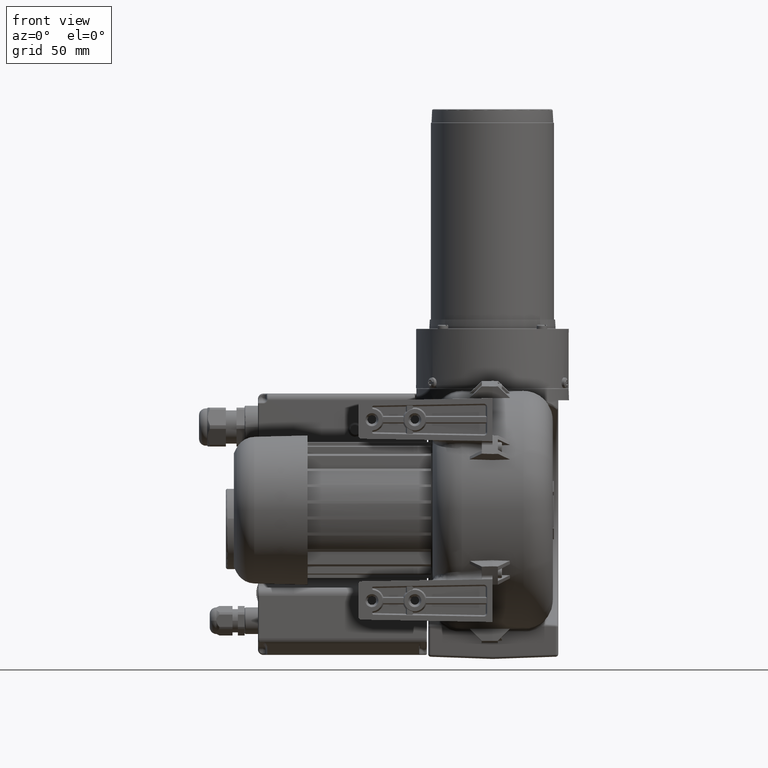
[diagram: clean part render]
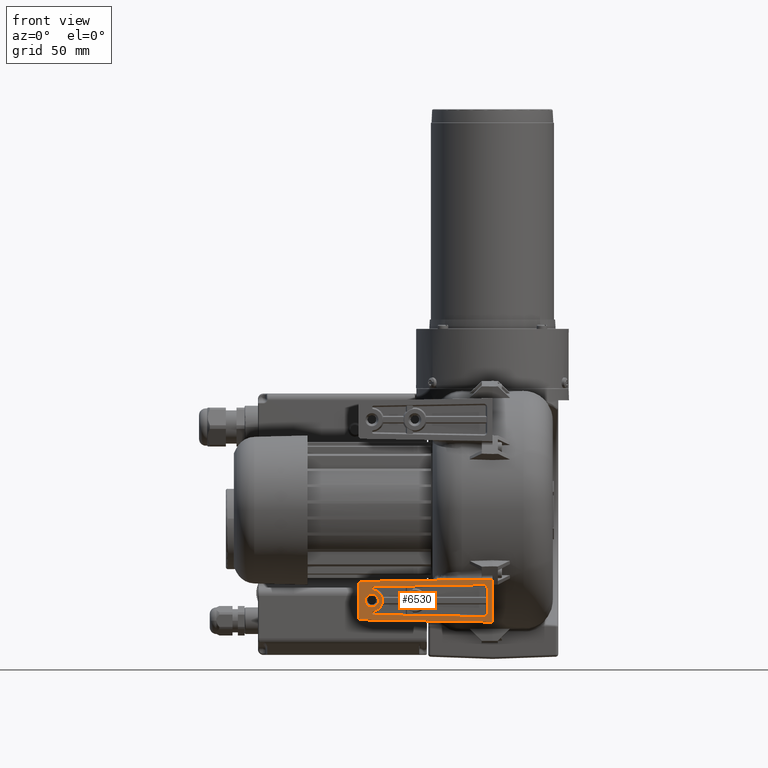
[diagram: same view with one face highlighted and labeled with its STEP entity id]
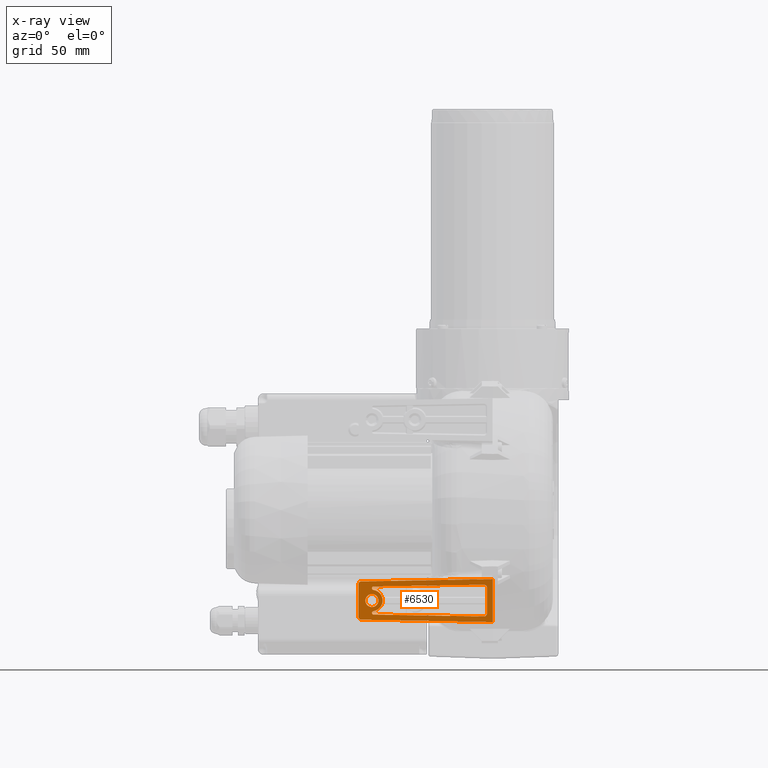
[diagram: x-ray of the same camera — body ghosted, the highlighted face saturated]
A machine part, front view. The second image highlights one B-rep face of the part: STEP entity #6530.
The next image is the same camera in x-ray: the body ghosted, the highlighted face saturated — about 0% of this face is hidden behind the body in this view.
In plain terms, the highlighted planar face has unit normal (0, -1, 0).
Its self-contained STEP definition (entity closure, byte-faithful):
#6530 = ADVANCED_FACE( '', ( #13610, #13611, #13612 ), #13613, .T. );
#13610 = FACE_OUTER_BOUND( '', #25799, .T. );
#13611 = FACE_BOUND( '', #25800, .T. );
#13612 = FACE_BOUND( '', #25801, .T. );
#13613 = PLANE( '', #25802 );
#25799 = EDGE_LOOP( '', ( #47168, #47169, #47170, #47171, #47172, #47173 ) );
#25800 = EDGE_LOOP( '', ( #47174 ) );
#25801 = EDGE_LOOP( '', ( #47175, #47176, #47177, #47178, #47179, #47180, #47181, #47182 ) );
#25802 = AXIS2_PLACEMENT_3D( '', #47183, #47184, #47185 );
#47168 = ORIENTED_EDGE( '', *, *, #54760, .F. );
#47169 = ORIENTED_EDGE( '', *, *, #51633, .F. );
#47170 = ORIENTED_EDGE( '', *, *, #52411, .F. );
#47171 = ORIENTED_EDGE( '', *, *, #50057, .T. );
#47172 = ORIENTED_EDGE( '', *, *, #51736, .T. );
#47173 = ORIENTED_EDGE( '', *, *, #55724, .F. );
#47174 = ORIENTED_EDGE( '', *, *, #55462, .F. );
#47175 = ORIENTED_EDGE( '', *, *, #57520, .F. );
#47176 = ORIENTED_EDGE( '', *, *, #54920, .F. );
#47177 = ORIENTED_EDGE( '', *, *, #57521, .F. );
#47178 = ORIENTED_EDGE( '', *, *, #53325, .F. );
#47179 = ORIENTED_EDGE( '', *, *, #54583, .T. );
#47180 = ORIENTED_EDGE( '', *, *, #52381, .F. );
#47181 = ORIENTED_EDGE( '', *, *, #55127, .F. );
#47182 = ORIENTED_EDGE( '', *, *, #57444, .F. );
#47183 = CARTESIAN_POINT( '', ( 0.000000000000000, -91.9999999999876, -51.4999999999972 ) );
#47184 = DIRECTION( '', ( 0.000000000000000, -1.00000000000000, 0.000000000000000 ) );
#47185 = DIRECTION( '', ( 0.000000000000000, 0.000000000000000, -1.00000000000000 ) );
#50057 = EDGE_CURVE( '', #59564, #59565, #59566, .T. );
#51633 = EDGE_CURVE( '', #62280, #62271, #62282, .T. );
#51736 = EDGE_CURVE( '', #59565, #62448, #62450, .T. );
#52381 = EDGE_CURVE( '', #63503, #63505, #63506, .T. );
#52411 = EDGE_CURVE( '', #59564, #62280, #63553, .T. );
#53325 = EDGE_CURVE( '', #64979, #64981, #64982, .T. );
#54583 = EDGE_CURVE( '', #64979, #63505, #66800, .T. );
#54760 = EDGE_CURVE( '', #62271, #67058, #67062, .T. );
#54920 = EDGE_CURVE( '', #67288, #67290, #67291, .T. );
#55127 = EDGE_CURVE( '', #67571, #63503, #67573, .T. );
#55462 = EDGE_CURVE( '', #68001, #68001, #68002, .T. );
#55724 = EDGE_CURVE( '', #67058, #62448, #68352, .T. );
#57444 = EDGE_CURVE( '', #70368, #67571, #70370, .T. );
#57520 = EDGE_CURVE( '', #67290, #70368, #70448, .T. );
#57521 = EDGE_CURVE( '', #64981, #67288, #70449, .T. );
#59564 = VERTEX_POINT( '', #73950 );
#59565 = VERTEX_POINT( '', #73951 );
#59566 = LINE( '', #73952, #73953 );
#62271 = VERTEX_POINT( '', #79173 );
#62280 = VERTEX_POINT( '', #79187 );
#62282 = LINE( '', #79190, #79191 );
#62448 = VERTEX_POINT( '', #79453 );
#62450 = LINE( '', #79456, #79457 );
#63503 = VERTEX_POINT( '', #81550 );
#63505 = VERTEX_POINT( '', #81553 );
#63506 = LINE( '', #81554, #81555 );
#63553 = CIRCLE( '', #81682, 1.99999999999988 );
#64979 = VERTEX_POINT( '', #84342 );
#64981 = VERTEX_POINT( '', #84345 );
#64982 = LINE( '', #84346, #84347 );
#66800 = CIRCLE( '', #87757, 2.44427716114939 );
#67058 = VERTEX_POINT( '', #88242 );
#67062 = CIRCLE( '', #88262, 1.99999999999988 );
#67288 = VERTEX_POINT( '', #88632 );
#67290 = VERTEX_POINT( '', #88635 );
#67291 = LINE( '', #88636, #88637 );
#67571 = VERTEX_POINT( '', #89142 );
#67573 = CIRCLE( '', #89145, 1.26882257064569 );
#68001 = VERTEX_POINT( '', #90098 );
#68002 = CIRCLE( '', #90099, 4.87761839538886 );
#68352 = LINE( '', #90735, #90736 );
#70368 = VERTEX_POINT( '', #94483 );
#70370 = CIRCLE( '', #94486, 8.00000000000102 );
#70448 = CIRCLE( '', #94616, 1.26882257064569 );
#70449 = CIRCLE( '', #94617, 2.44427716114939 );
#73950 = CARTESIAN_POINT( '', ( -98.0349048128819, -91.9999999999876, -81.7887943712580 ) );
#73951 = CARTESIAN_POINT( '', ( -2.77555756156289E-014, -91.9999999999876, -83.4999999999970 ) );
#73952 = CARTESIAN_POINT( '', ( -98.0349048128818, -91.9999999999876, -81.7887943712586 ) );
#73953 = VECTOR( '', #96241, 1000.00000000000 );
#79173 = CARTESIAN_POINT( '', ( -100.000000000000, -91.9999999999876, -55.2109010190490 ) );
#79187 = CARTESIAN_POINT( '', ( -100.000000000000, -91.9999999999876, -79.7890989809444 ) );
#79190 = CARTESIAN_POINT( '', ( -100.000000000006, -91.9999999999876, -79.7890989809444 ) );
#79191 = VECTOR( '', #98145, 1000.00000000000 );
#79453 = CARTESIAN_POINT( '', ( -2.77555756156289E-014, -91.9999999999876, -51.4999999999964 ) );
#79456 = CARTESIAN_POINT( '', ( 0.000000000000000, -91.9999999999876, -83.4999999999962 ) );
#79457 = VECTOR( '', #98279, 1000.00000000000 );
#81550 = CARTESIAN_POINT( '', ( -88.7533214365632, -91.9999999999876, -77.9501956995508 ) );
#81553 = CARTESIAN_POINT( '', ( -6.48693567961044, -91.9999999999876, -79.3861608043484 ) );
#81554 = CARTESIAN_POINT( '', ( -88.7533214365632, -91.9999999999876, -77.9501956995508 ) );
#81555 = VECTOR( '', #99061, 1000.00000000000 );
#81682 = AXIS2_PLACEMENT_3D( '', #99095, #99096, #99097 );
#84342 = CARTESIAN_POINT( '', ( -3.99999999999924, -91.9999999999876, -76.9422559184570 ) );
#84345 = CARTESIAN_POINT( '', ( -3.99999999999924, -91.9999999999876, -58.0577440815364 ) );
#84346 = CARTESIAN_POINT( '', ( -3.99999999999924, -91.9999999999876, -76.9422559184570 ) );
#84347 = VECTOR( '', #100151, 1000.00000000000 );
#87757 = AXIS2_PLACEMENT_3D( '', #101662, #101663, #101664 );
#88242 = CARTESIAN_POINT( '', ( -98.0349048128818, -91.9999999999876, -53.2112056287354 ) );
#88262 = AXIS2_PLACEMENT_3D( '', #101890, #101891, #101892 );
#88632 = CARTESIAN_POINT( '', ( -6.48693567961044, -91.9999999999876, -55.6138391956450 ) );
#88635 = CARTESIAN_POINT( '', ( -88.7533214365631, -91.9999999999892, -57.0498043004510 ) );
#88636 = CARTESIAN_POINT( '', ( -6.48693567961044, -91.9999999999876, -55.6138391956450 ) );
#88637 = VECTOR( '', #102052, 1000.00000000000 );
#89142 = CARTESIAN_POINT( '', ( -88.9048683920920, -91.9999999999876, -75.4246884330748 ) );
#89145 = AXIS2_PLACEMENT_3D( '', #102274, #102275, #102276 );
#90098 = CARTESIAN_POINT( '', ( -89.9999999999956, -91.9999999999876, -62.6223816046205 ) );
#90099 = AXIS2_PLACEMENT_3D( '', #102618, #102619, #102620 );
#90735 = CARTESIAN_POINT( '', ( -98.0349048128818, -91.9999999999876, -53.2112056287348 ) );
#90736 = VECTOR( '', #102982, 1000.00000000000 );
#94483 = CARTESIAN_POINT( '', ( -88.9048683920920, -91.9999999999876, -59.5753115669186 ) );
#94486 = AXIS2_PLACEMENT_3D( '', #104526, #104527, #104528 );
#94616 = AXIS2_PLACEMENT_3D( '', #104556, #104557, #104558 );
#94617 = AXIS2_PLACEMENT_3D( '', #104559, #104560, #104561 );
#96241 = DIRECTION( '', ( 0.999847695156391, 0.000000000000000, -0.0174524064372799 ) );
#98145 = DIRECTION( '', ( 0.000000000000000, 0.000000000000000, 1.00000000000000 ) );
#98279 = DIRECTION( '', ( 0.000000000000000, 0.000000000000000, 1.00000000000000 ) );
#99061 = DIRECTION( '', ( 0.999847695156391, 0.000000000000000, -0.0174524064372799 ) );
#99095 = CARTESIAN_POINT( '', ( -97.9999999999890, -91.9999999999876, -79.7890989809444 ) );
#99096 = DIRECTION( '', ( 0.000000000000000, 1.00000000000000, 0.000000000000000 ) );
#99097 = DIRECTION( '', ( -0.0174524064375298, 0.000000000000000, -0.999847695156387 ) );
#100151 = DIRECTION( '', ( 0.000000000000000, 0.000000000000000, 1.00000000000000 ) );
#101662 = CARTESIAN_POINT( '', ( -6.44427716115066, -91.9999999999876, -76.9422559184570 ) );
#101663 = DIRECTION( '', ( -0.000000000000000, 1.00000000000000, 0.000000000000000 ) );
#101664 = DIRECTION( '', ( 1.00000000000000, 0.000000000000000, 2.30740320890800E-014 ) );
#101890 = CARTESIAN_POINT( '', ( -97.9999999999890, -91.9999999999876, -55.2109010190490 ) );
#101891 = DIRECTION( '', ( 0.000000000000000, 1.00000000000000, 0.000000000000000 ) );
#101892 = DIRECTION( '', ( -1.00000000000000, 0.000000000000000, 0.000000000000000 ) );
#102052 = DIRECTION( '', ( -0.999847695156391, 0.000000000000000, -0.0174524064372799 ) );
#102274 = CARTESIAN_POINT( '', ( -88.7311774293654, -91.9999999999876, -76.6815663767434 ) );
#102275 = DIRECTION( '', ( 0.000000000000000, -1.00000000000000, 0.000000000000000 ) );
#102276 = DIRECTION( '', ( -0.136891450988003, 0.000000000000000, 0.990586054134823 ) );
#102618 = CARTESIAN_POINT( '', ( -89.9999999999956, -91.9999999999876, -67.5000000000094 ) );
#102619 = DIRECTION( '', ( 0.000000000000000, -1.00000000000000, 0.000000000000000 ) );
#102620 = DIRECTION( '', ( 0.000000000000000, 0.000000000000000, -1.00000000000000 ) );
#102982 = DIRECTION( '', ( 0.999847695156391, 0.000000000000000, 0.0174524064372799 ) );
#104526 = CARTESIAN_POINT( '', ( -89.9999999999956, -91.9999999999876, -67.5000000000094 ) );
#104527 = DIRECTION( '', ( -0.000000000000000, 1.00000000000000, 0.000000000000000 ) );
#104528 = DIRECTION( '', ( 0.136891450988003, 0.000000000000000, 0.990586054134823 ) );
#104556 = CARTESIAN_POINT( '', ( -88.7311774293654, -91.9999999999876, -58.3184336232754 ) );
#104557 = DIRECTION( '', ( 0.000000000000000, -1.00000000000000, 0.000000000000000 ) );
#104558 = DIRECTION( '', ( -0.0174524064374498, 0.000000000000000, 0.999847695156388 ) );
#104559 = CARTESIAN_POINT( '', ( -6.44427716115066, -91.9999999999876, -58.0577440815364 ) );
#104560 = DIRECTION( '', ( 0.000000000000000, -1.00000000000000, 0.000000000000000 ) );
#104561 = DIRECTION( '', ( 1.00000000000000, 0.000000000000000, -2.30740320890800E-014 ) );